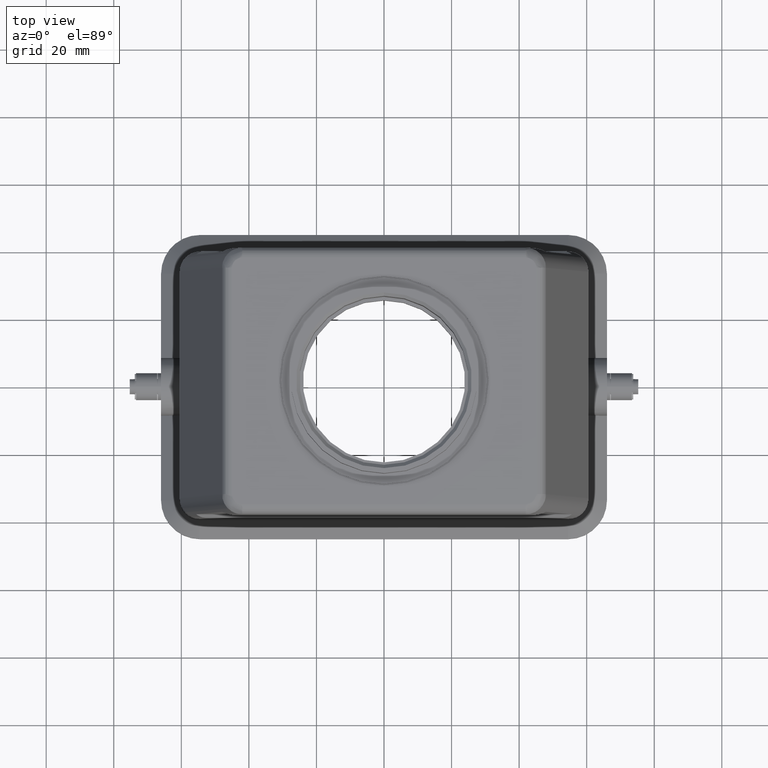
[diagram: clean part render]
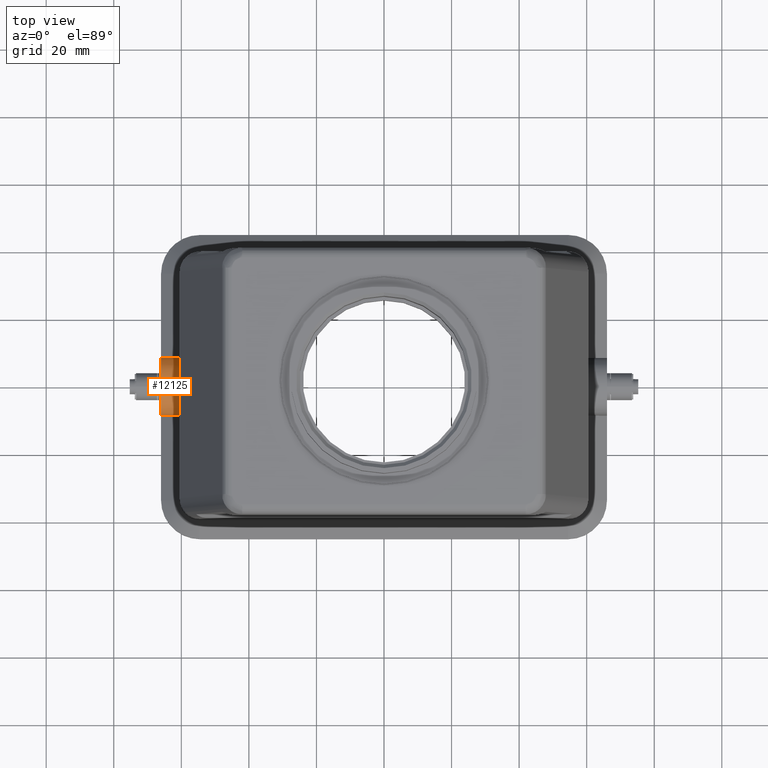
[diagram: same view with one face highlighted and labeled with its STEP entity id]
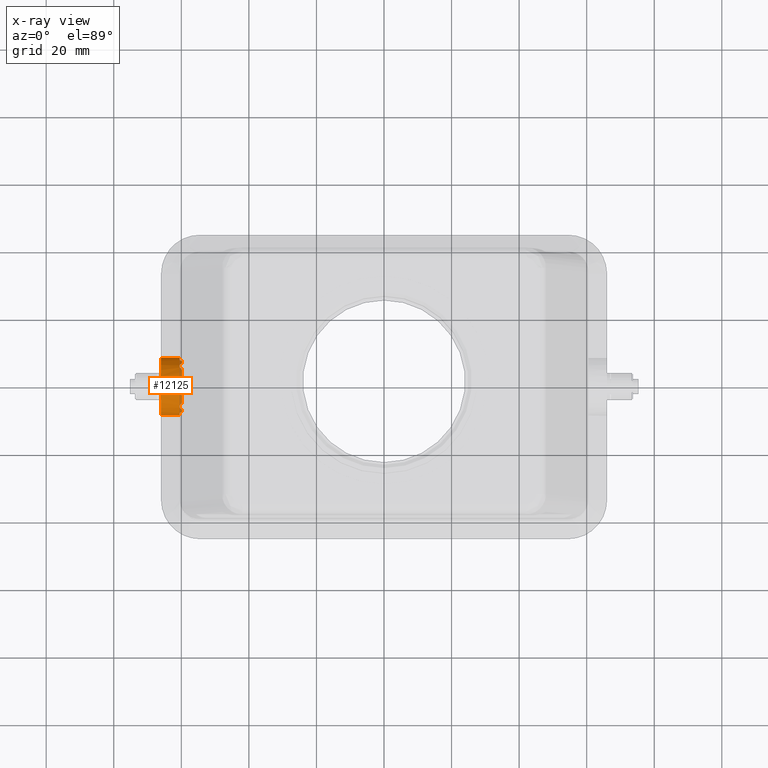
[diagram: x-ray of the same camera — body ghosted, the highlighted face saturated]
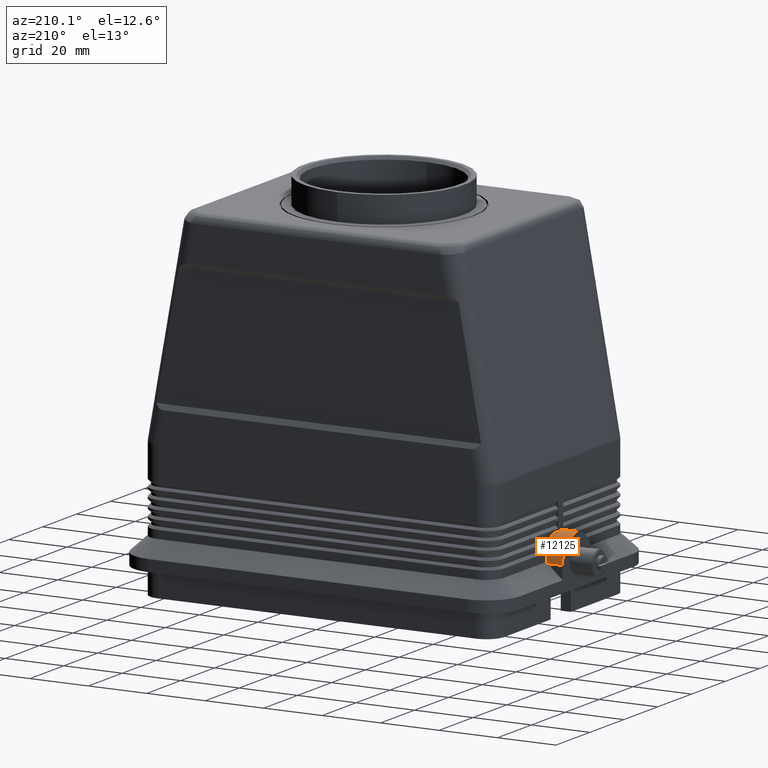
[diagram: same view with one face highlighted and labeled with its STEP entity id]
A machine part, top view. The second image highlights one B-rep face of the part: STEP entity #12125.
The next image is the same camera in x-ray: the body ghosted, the highlighted face saturated — about 6% of this face is hidden behind the body in this view.
A second angle (auxiliary view) of the same face is appended — the face is thin or edge-on in the first view.
In plain terms, the highlighted face is a freeform B-spline surface patch.
Its self-contained STEP definition (entity closure, byte-faithful):
#10210=CARTESIAN_POINT('',(-59.750000000000007,-6.873863542433762,22.499999999999996));
#10211=VERTEX_POINT('',#10210);
#10218=CARTESIAN_POINT('',(-59.750000000000007,-7.499999999999998,21.500000000000004));
#10219=VERTEX_POINT('',#10218);
#10220=CARTESIAN_POINT('',(-59.750000000000007,0.0,17.500000000000000));
#10221=DIRECTION('',(1.0,0.0,0.0));
#10222=DIRECTION('',(0.0,-1.0,0.0));
#10223=AXIS2_PLACEMENT_3D('',#10220,#10221,#10222);
#10224=CIRCLE('',#10223,8.500000000000000);
#10225=EDGE_CURVE('',#10211,#10219,#10224,.T.);
#10260=CARTESIAN_POINT('',(-59.750000000000007,7.499999999999998,21.500000000000004));
#10261=VERTEX_POINT('',#10260);
#10268=CARTESIAN_POINT('',(-59.750000000000007,6.873863542433762,22.499999999999996));
#10269=VERTEX_POINT('',#10268);
#10270=CARTESIAN_POINT('',(-59.750000000000007,0.0,17.500000000000000));
#10271=DIRECTION('',(1.0,0.0,0.0));
#10272=DIRECTION('',(0.0,-1.0,0.0));
#10273=AXIS2_PLACEMENT_3D('',#10270,#10271,#10272);
#10274=CIRCLE('',#10273,8.500000000000000);
#10275=EDGE_CURVE('',#10261,#10269,#10274,.T.);
#11564=CARTESIAN_POINT('',(-59.800000000000004,-6.873863542433762,22.499999999999996));
#11565=VERTEX_POINT('',#11564);
#11572=CARTESIAN_POINT('',(-59.800000000000004,-6.873863542433762,22.499999999999996));
#11573=DIRECTION('',(1.0,0.0,0.0));
#11574=VECTOR('',#11573,0.049999999999997);
#11575=LINE('',#11572,#11574);
#11576=EDGE_CURVE('',#11565,#10211,#11575,.T.);
#11585=CARTESIAN_POINT('',(-59.800000000000004,6.873863542433762,22.499999999999996));
#11586=VERTEX_POINT('',#11585);
#11587=CARTESIAN_POINT('',(-59.750000000000007,6.873863542433762,22.499999999999996));
#11588=DIRECTION('',(-1.0,0.0,0.0));
#11589=VECTOR('',#11588,0.049999999999997);
#11590=LINE('',#11587,#11589);
#11591=EDGE_CURVE('',#10269,#11586,#11590,.T.);
#11777=CARTESIAN_POINT('',(-59.750000000000007,-4.821825380496474,24.500000000000000));
#11778=VERTEX_POINT('',#11777);
#11793=CARTESIAN_POINT('',(-59.750000000000007,-2.872281323269019,25.500000000000000));
#11794=VERTEX_POINT('',#11793);
#11801=CARTESIAN_POINT('',(-59.750000000000007,0.0,17.500000000000000));
#11802=DIRECTION('',(1.0,0.0,0.0));
#11803=DIRECTION('',(0.0,-1.0,0.0));
#11804=AXIS2_PLACEMENT_3D('',#11801,#11802,#11803);
#11805=CIRCLE('',#11804,8.500000000000000);
#11806=EDGE_CURVE('',#11794,#11778,#11805,.T.);
#11816=CARTESIAN_POINT('',(-59.750000000000007,4.821825380496474,24.500000000000000));
#11817=VERTEX_POINT('',#11816);
#11826=CARTESIAN_POINT('',(-59.750000000000007,2.872281323269019,25.500000000000000));
#11827=VERTEX_POINT('',#11826);
#11828=CARTESIAN_POINT('',(-59.750000000000007,0.0,17.500000000000000));
#11829=DIRECTION('',(1.0,0.0,0.0));
#11830=DIRECTION('',(0.0,-1.0,0.0));
#11831=AXIS2_PLACEMENT_3D('',#11828,#11829,#11830);
#11832=CIRCLE('',#11831,8.500000000000000);
#11833=EDGE_CURVE('',#11817,#11827,#11832,.T.);
#11859=CARTESIAN_POINT('',(-61.050000000000004,8.499999999999998,17.500000000000000));
#11860=VERTEX_POINT('',#11859);
#11867=CARTESIAN_POINT('',(-66.0,8.499999999999998,17.500000000000000));
#11868=VERTEX_POINT('',#11867);
#11875=CARTESIAN_POINT('',(-66.0,8.499999999999998,17.500000000000000));
#11876=DIRECTION('',(1.0,0.0,0.0));
#11877=VECTOR('',#11876,4.949999999999996);
#11878=LINE('',#11875,#11877);
#11879=EDGE_CURVE('',#11868,#11860,#11878,.T.);
#11884=CARTESIAN_POINT('',(-66.0,8.500000000000000,17.500000000000000));
#11885=CARTESIAN_POINT('',(-59.750000000000000,8.500000000000000,17.500000000000000));
#11886=CARTESIAN_POINT('',(-66.0,8.499999999999998,9.000000000000002));
#11887=CARTESIAN_POINT('',(-59.749999999999993,8.499999999999998,9.000000000000002));
#11888=CARTESIAN_POINT('',(-66.0,0.0,9.0));
#11889=CARTESIAN_POINT('',(-59.750000000000000,0.0,9.0));
#11890=CARTESIAN_POINT('',(-66.0,-8.499999999999998,9.000000000000002));
#11891=CARTESIAN_POINT('',(-59.749999999999993,-8.499999999999998,9.000000000000002));
#11892=CARTESIAN_POINT('',(-66.0,-8.500000000000000,17.500000000000000));
#11893=CARTESIAN_POINT('',(-59.750000000000000,-8.500000000000000,17.500000000000000));
#11894=CARTESIAN_POINT('',(-66.0,-8.499999999999998,26.000000000000004));
#11895=CARTESIAN_POINT('',(-59.749999999999993,-8.499999999999998,26.000000000000004));
#11896=CARTESIAN_POINT('',(-66.0,0.0,26.0));
#11897=CARTESIAN_POINT('',(-59.750000000000000,0.0,26.0));
#11898=CARTESIAN_POINT('',(-66.0,8.499999999999998,26.000000000000004));
#11899=CARTESIAN_POINT('',(-59.749999999999993,8.499999999999998,26.000000000000004));
#11900=CARTESIAN_POINT('',(-66.0,8.500000000000000,17.500000000000000));
#11901=CARTESIAN_POINT('',(-59.750000000000000,8.500000000000000,17.500000000000000));
#11909=(BOUNDED_SURFACE()B_SPLINE_SURFACE(1,2,((#11884,#11886,#11888,#11890,#11892,#11894,#11896,#11898,#11900),(#11885,#11887,#11889,#11891,#11893,#11895,#11897,#11899,#11901)),.UNSPECIFIED.,.F.,.T.,.U.)B_SPLINE_SURFACE_WITH_KNOTS((2,2),(3,2,2,2,3),(0.0,0.735294117647059),(0.0,13.351768777756622,26.703537555513243,40.055306333269861,53.407075111026487),.UNSPECIFIED.)GEOMETRIC_REPRESENTATION_ITEM()RATIONAL_B_SPLINE_SURFACE(((1.0,0.707106781186548,1.0,0.707106781186548,1.0,0.707106781186548,1.0,0.707106781186548,1.0),(1.0,0.707106781186548,1.0,0.707106781186548,1.0,0.707106781186548,1.0,0.707106781186548,1.0)))REPRESENTATION_ITEM('')SURFACE());
#11910=CARTESIAN_POINT('',(-59.800000000000004,-7.499999999999998,21.500000000000004));
#11911=VERTEX_POINT('',#11910);
#11912=CARTESIAN_POINT('',(-59.750000000000007,-7.499999999999998,21.500000000000004));
#11913=DIRECTION('',(-1.0,0.0,0.0));
#11914=VECTOR('',#11913,0.049999999999997);
#11915=LINE('',#11912,#11914);
#11916=EDGE_CURVE('',#10219,#11911,#11915,.T.);
#11917=ORIENTED_EDGE('',*,*,#11916,.F.);
#11918=ORIENTED_EDGE('',*,*,#10225,.F.);
#11919=ORIENTED_EDGE('',*,*,#11576,.F.);
#11920=CARTESIAN_POINT('',(-60.500000000000007,-6.305553108173787,23.199999999999989));
#11921=VERTEX_POINT('',#11920);
#11922=CARTESIAN_POINT('',(-54.799999999999940,0.0,17.500000000000000));
#11923=DIRECTION('',(0.707106781186543,2.901670E-030,0.707106781186552));
#11924=DIRECTION('',(-0.707106781186552,0.0,0.707106781186543));
#11925=AXIS2_PLACEMENT_3D('',#11922,#11923,#11924);
#11926=ELLIPSE('',#11925,12.020815280171382,8.499999999999998);
#11927=EDGE_CURVE('',#11921,#11565,#11926,.T.);
#11928=ORIENTED_EDGE('',*,*,#11927,.F.);
#11929=CARTESIAN_POINT('',(-60.500000000000007,-5.706137047074837,23.800000000000004));
#11930=VERTEX_POINT('',#11929);
#11931=CARTESIAN_POINT('',(-60.500000000000007,0.0,17.500000000000000));
#11932=DIRECTION('',(1.0,0.0,0.0));
#11933=DIRECTION('',(0.0,-1.0,0.0));
#11934=AXIS2_PLACEMENT_3D('',#11931,#11932,#11933);
#11935=CIRCLE('',#11934,8.500000000000000);
#11936=EDGE_CURVE('',#11930,#11921,#11935,.T.);
#11937=ORIENTED_EDGE('',*,*,#11936,.F.);
#11938=CARTESIAN_POINT('',(-59.800000000000004,-4.821825380496474,24.500000000000000));
#11939=VERTEX_POINT('',#11938);
#11940=CARTESIAN_POINT('',(-66.800000000000054,0.0,17.500000000000000));
#11941=DIRECTION('',(0.707106781186545,-2.879632E-030,-0.707106781186550));
#11942=DIRECTION('',(0.707106781186550,0.0,0.707106781186545));
#11943=AXIS2_PLACEMENT_3D('',#11940,#11941,#11942);
#11944=ELLIPSE('',#11943,12.020815280171345,8.500000000000002);
#11945=EDGE_CURVE('',#11939,#11930,#11944,.T.);
#11946=ORIENTED_EDGE('',*,*,#11945,.F.);
#11947=CARTESIAN_POINT('',(-59.750000000000007,-4.821825380496474,24.500000000000000));
#11948=DIRECTION('',(-1.0,0.0,0.0));
#11949=VECTOR('',#11948,0.049999999999997);
#11950=LINE('',#11947,#11949);
#11951=EDGE_CURVE('',#11778,#11939,#11950,.T.);
#11952=ORIENTED_EDGE('',*,*,#11951,.F.);
#11953=ORIENTED_EDGE('',*,*,#11806,.F.);
#11954=CARTESIAN_POINT('',(-59.800000000000004,-2.872281323269019,25.500000000000000));
#11955=VERTEX_POINT('',#11954);
#11956=CARTESIAN_POINT('',(-59.800000000000004,-2.872281323269019,25.500000000000000));
#11957=DIRECTION('',(1.0,0.0,0.0));
#11958=VECTOR('',#11957,0.049999999999997);
#11959=LINE('',#11956,#11958);
#11960=EDGE_CURVE('',#11955,#11794,#11959,.T.);
#11961=ORIENTED_EDGE('',*,*,#11960,.F.);
#11962=CARTESIAN_POINT('',(-60.166600265340762,-1.499999999999999,25.866600265340757));
#11963=VERTEX_POINT('',#11962);
#11964=CARTESIAN_POINT('',(-51.799999999999955,0.0,17.500000000000000));
#11965=DIRECTION('',(0.707106781186545,2.901670E-030,0.707106781186550));
#11966=DIRECTION('',(-0.707106781186550,0.0,0.707106781186545));
#11967=AXIS2_PLACEMENT_3D('',#11964,#11965,#11966);
#11968=ELLIPSE('',#11967,12.020815280171345,8.500000000000002);
#11969=EDGE_CURVE('',#11963,#11955,#11968,.T.);
#11970=ORIENTED_EDGE('',*,*,#11969,.F.);
#11971=CARTESIAN_POINT('',(-60.500000000000007,-1.500000000000000,25.866600265340757));
#11972=VERTEX_POINT('',#11971);
#11973=CARTESIAN_POINT('',(-60.500000000000007,-1.500000000000000,25.866600265340757));
#11974=DIRECTION('',(1.0,0.0,0.0));
#11975=VECTOR('',#11974,0.333399734659245);
#11976=LINE('',#11973,#11975);
#11977=EDGE_CURVE('',#11972,#11963,#11976,.T.);
#11978=ORIENTED_EDGE('',*,*,#11977,.F.);
#11979=CARTESIAN_POINT('',(-60.500000000000007,1.500000000000000,25.866600265340757));
#11980=VERTEX_POINT('',#11979);
#11981=CARTESIAN_POINT('',(-60.500000000000007,0.0,17.500000000000000));
#11982=DIRECTION('',(1.0,0.0,0.0));
#11983=DIRECTION('',(0.0,-1.0,0.0));
#11984=AXIS2_PLACEMENT_3D('',#11981,#11982,#11983);
#11985=CIRCLE('',#11984,8.500000000000000);
#11986=EDGE_CURVE('',#11980,#11972,#11985,.T.);
#11987=ORIENTED_EDGE('',*,*,#11986,.F.);
#11988=CARTESIAN_POINT('',(-60.166600265340762,1.499999999999999,25.866600265340757));
#11989=VERTEX_POINT('',#11988);
#11990=CARTESIAN_POINT('',(-60.166600265340762,1.499999999999999,25.866600265340757));
#11991=DIRECTION('',(-1.0,0.0,0.0));
#11992=VECTOR('',#11991,0.333399734659245);
#11993=LINE('',#11990,#11992);
#11994=EDGE_CURVE('',#11989,#11980,#11993,.T.);
#11995=ORIENTED_EDGE('',*,*,#11994,.F.);
#11996=CARTESIAN_POINT('',(-59.800000000000004,2.872281323269019,25.500000000000000));
#11997=VERTEX_POINT('',#11996);
#11998=CARTESIAN_POINT('',(-51.799999999999955,0.0,17.500000000000000));
#11999=DIRECTION('',(0.707106781186545,-2.901670E-030,0.707106781186550));
#12000=DIRECTION('',(-0.707106781186550,0.0,0.707106781186545));
#12001=AXIS2_PLACEMENT_3D('',#11998,#11999,#12000);
#12002=ELLIPSE('',#12001,12.020815280171345,8.500000000000002);
#12003=EDGE_CURVE('',#11997,#11989,#12002,.T.);
#12004=ORIENTED_EDGE('',*,*,#12003,.F.);
#12005=CARTESIAN_POINT('',(-59.750000000000007,2.872281323269019,25.500000000000000));
#12006=DIRECTION('',(-1.0,0.0,0.0));
#12007=VECTOR('',#12006,0.049999999999997);
#12008=LINE('',#12005,#12007);
#12009=EDGE_CURVE('',#11827,#11997,#12008,.T.);
#12010=ORIENTED_EDGE('',*,*,#12009,.F.);
#12011=ORIENTED_EDGE('',*,*,#11833,.F.);
#12012=CARTESIAN_POINT('',(-59.800000000000004,4.821825380496474,24.500000000000000));
#12013=VERTEX_POINT('',#12012);
#12014=CARTESIAN_POINT('',(-59.800000000000004,4.821825380496474,24.500000000000000));
#12015=DIRECTION('',(1.0,0.0,0.0));
#12016=VECTOR('',#12015,0.049999999999997);
#12017=LINE('',#12014,#12016);
#12018=EDGE_CURVE('',#12013,#11817,#12017,.T.);
#12019=ORIENTED_EDGE('',*,*,#12018,.F.);
#12020=CARTESIAN_POINT('',(-60.500000000000007,5.706137047074837,23.800000000000004));
#12021=VERTEX_POINT('',#12020);
#12022=CARTESIAN_POINT('',(-66.800000000000054,0.0,17.500000000000000));
#12023=DIRECTION('',(0.707106781186545,2.879632E-030,-0.707106781186550));
#12024=DIRECTION('',(0.707106781186550,0.0,0.707106781186545));
#12025=AXIS2_PLACEMENT_3D('',#12022,#12023,#12024);
#12026=ELLIPSE('',#12025,12.020815280171345,8.500000000000002);
#12027=EDGE_CURVE('',#12021,#12013,#12026,.T.);
#12028=ORIENTED_EDGE('',*,*,#12027,.F.);
#12029=CARTESIAN_POINT('',(-60.500000000000007,6.305553108173787,23.199999999999989));
#12030=VERTEX_POINT('',#12029);
#12031=CARTESIAN_POINT('',(-60.500000000000007,0.0,17.500000000000000));
#12032=DIRECTION('',(1.0,0.0,0.0));
#12033=DIRECTION('',(0.0,-1.0,0.0));
#12034=AXIS2_PLACEMENT_3D('',#12031,#12032,#12033);
#12035=CIRCLE('',#12034,8.500000000000000);
#12036=EDGE_CURVE('',#12030,#12021,#12035,.T.);
#12037=ORIENTED_EDGE('',*,*,#12036,.F.);
#12038=CARTESIAN_POINT('',(-54.799999999999940,0.0,17.500000000000000));
#12039=DIRECTION('',(0.707106781186543,-2.901670E-030,0.707106781186552));
#12040=DIRECTION('',(-0.707106781186552,0.0,0.707106781186543));
#12041=AXIS2_PLACEMENT_3D('',#12038,#12039,#12040);
#12042=ELLIPSE('',#12041,12.020815280171382,8.499999999999998);
#12043=EDGE_CURVE('',#11586,#12030,#12042,.T.);
#12044=ORIENTED_EDGE('',*,*,#12043,.F.);
#12045=ORIENTED_EDGE('',*,*,#11591,.F.);
#12046=ORIENTED_EDGE('',*,*,#10275,.F.);
#12047=CARTESIAN_POINT('',(-59.800000000000004,7.499999999999998,21.500000000000004));
#12048=VERTEX_POINT('',#12047);
#12049=CARTESIAN_POINT('',(-59.800000000000004,7.499999999999998,21.500000000000004));
#12050=DIRECTION('',(1.0,0.0,0.0));
#12051=VECTOR('',#12050,0.049999999999997);
#12052=LINE('',#12049,#12051);
#12053=EDGE_CURVE('',#12048,#10261,#12052,.T.);
#12054=ORIENTED_EDGE('',*,*,#12053,.F.);
#12055=CARTESIAN_POINT('',(-60.500000000000007,7.833262411026452,20.800000000000004));
#12056=VERTEX_POINT('',#12055);
#12057=CARTESIAN_POINT('',(-63.800000000000033,0.0,17.500000000000000));
#12058=DIRECTION('',(0.707106781186545,2.879632E-030,-0.707106781186550));
#12059=DIRECTION('',(0.707106781186550,0.0,0.707106781186545));
#12060=AXIS2_PLACEMENT_3D('',#12057,#12058,#12059);
#12061=ELLIPSE('',#12060,12.020815280171345,8.500000000000002);
#12062=EDGE_CURVE('',#12056,#12048,#12061,.T.);
#12063=ORIENTED_EDGE('',*,*,#12062,.F.);
#12064=CARTESIAN_POINT('',(-60.500000000000007,8.485281374238570,18.0));
#12065=VERTEX_POINT('',#12064);
#12066=CARTESIAN_POINT('',(-60.500000000000007,0.0,17.500000000000000));
#12067=DIRECTION('',(1.0,0.0,0.0));
#12068=DIRECTION('',(0.0,-1.0,0.0));
#12069=AXIS2_PLACEMENT_3D('',#12066,#12067,#12068);
#12070=CIRCLE('',#12069,8.500000000000000);
#12071=EDGE_CURVE('',#12065,#12056,#12070,.T.);
#12072=ORIENTED_EDGE('',*,*,#12071,.F.);
#12073=CARTESIAN_POINT('',(-61.050000000000004,0.0,17.500000000000000));
#12074=DIRECTION('',(0.672672793996313,0.0,-0.739940073395943));
#12075=DIRECTION('',(0.739940073395943,0.0,0.672672793996313));
#12076=AXIS2_PLACEMENT_3D('',#12073,#12074,#12075);
#12077=ELLIPSE('',#12076,12.636158435220718,8.499999999999998);
#12078=EDGE_CURVE('',#11860,#12065,#12077,.T.);
#12079=ORIENTED_EDGE('',*,*,#12078,.F.);
#12080=ORIENTED_EDGE('',*,*,#11879,.F.);
#12081=CARTESIAN_POINT('',(-66.0,-8.499999999999998,17.500000000000000));
#12082=VERTEX_POINT('',#12081);
#12083=CARTESIAN_POINT('',(-66.0,0.0,17.500000000000000));
#12084=DIRECTION('',(-1.0,0.0,0.0));
#12085=DIRECTION('',(0.0,-1.0,0.0));
#12086=AXIS2_PLACEMENT_3D('',#12083,#12084,#12085);
#12087=CIRCLE('',#12086,8.500000000000000);
#12088=EDGE_CURVE('',#12082,#11868,#12087,.T.);
#12089=ORIENTED_EDGE('',*,*,#12088,.F.);
#12090=CARTESIAN_POINT('',(-61.050000000000004,-8.499999999999998,17.500000000000000));
#12091=VERTEX_POINT('',#12090);
#12092=CARTESIAN_POINT('',(-66.0,-8.499999999999998,17.500000000000000));
#12093=DIRECTION('',(1.0,0.0,0.0));
#12094=VECTOR('',#12093,4.949999999999996);
#12095=LINE('',#12092,#12094);
#12096=EDGE_CURVE('',#12082,#12091,#12095,.T.);
#12097=ORIENTED_EDGE('',*,*,#12096,.T.);
#12098=CARTESIAN_POINT('',(-60.500000000000007,-8.485281374238570,18.0));
#12099=VERTEX_POINT('',#12098);
#12100=CARTESIAN_POINT('',(-61.050000000000004,0.0,17.500000000000000));
#12101=DIRECTION('',(0.672672793996313,0.0,-0.739940073395943));
#12102=DIRECTION('',(0.739940073395943,0.0,0.672672793996313));
#12103=AXIS2_PLACEMENT_3D('',#12100,#12101,#12102);
#12104=ELLIPSE('',#12103,12.636158435220718,8.499999999999998);
#12105=EDGE_CURVE('',#12099,#12091,#12104,.T.);
#12106=ORIENTED_EDGE('',*,*,#12105,.F.);
#12107=CARTESIAN_POINT('',(-60.500000000000007,-7.833262411026452,20.800000000000004));
#12108=VERTEX_POINT('',#12107);
#12109=CARTESIAN_POINT('',(-60.500000000000007,0.0,17.500000000000000));
#12110=DIRECTION('',(1.0,0.0,0.0));
#12111=DIRECTION('',(0.0,-1.0,0.0));
#12112=AXIS2_PLACEMENT_3D('',#12109,#12110,#12111);
#12113=CIRCLE('',#12112,8.500000000000000);
#12114=EDGE_CURVE('',#12108,#12099,#12113,.T.);
#12115=ORIENTED_EDGE('',*,*,#12114,.F.);
#12116=CARTESIAN_POINT('',(-63.800000000000033,0.0,17.500000000000000));
#12117=DIRECTION('',(0.707106781186545,-2.879632E-030,-0.707106781186550));
#12118=DIRECTION('',(0.707106781186550,0.0,0.707106781186545));
#12119=AXIS2_PLACEMENT_3D('',#12116,#12117,#12118);
#12120=ELLIPSE('',#12119,12.020815280171345,8.500000000000002);
#12121=EDGE_CURVE('',#11911,#12108,#12120,.T.);
#12122=ORIENTED_EDGE('',*,*,#12121,.F.);
#12123=EDGE_LOOP('',(#11917,#11918,#11919,#11928,#11937,#11946,#11952,#11953,#11961,#11970,#11978,#11987,#11995,#12004,#12010,#12011,#12019,#12028,#12037,#12044,#12045,#12046,#12054,#12063,#12072,#12079,#12080,#12089,#12097,#12106,#12115,#12122));
#12124=FACE_OUTER_BOUND('',#12123,.T.);
#12125=ADVANCED_FACE('',(#12124),#11909,.T.);